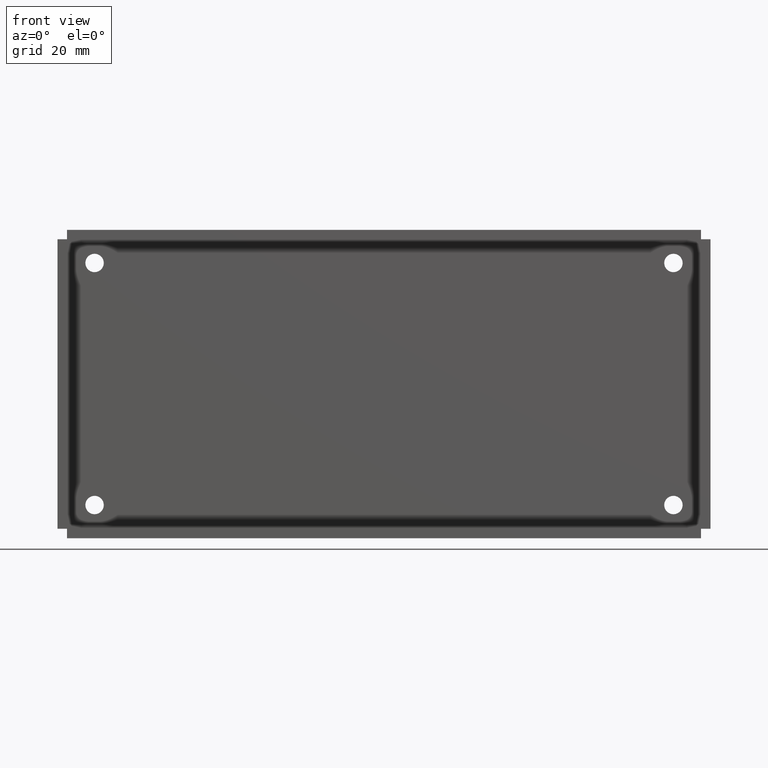
[diagram: clean part render]
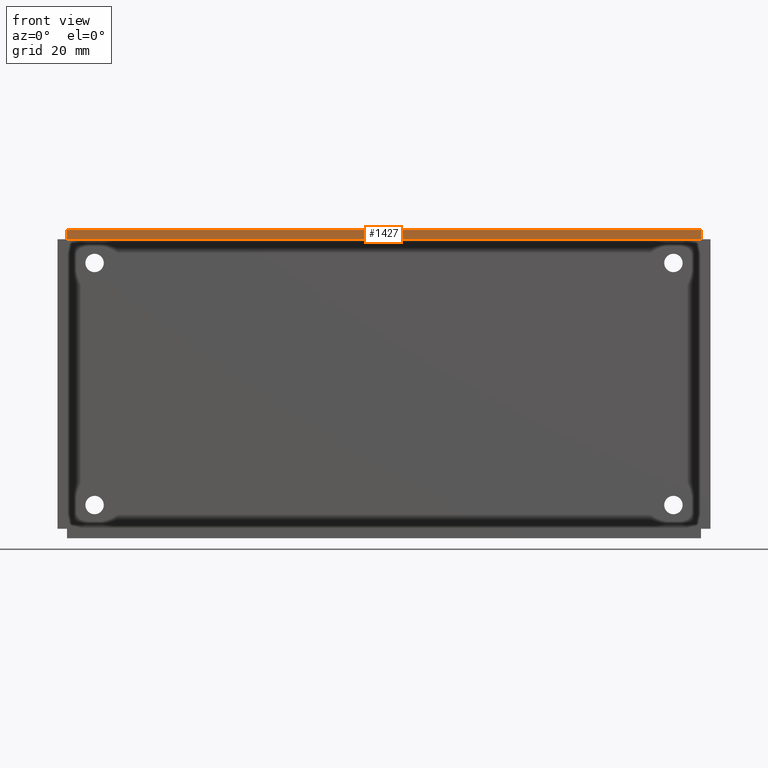
[diagram: same view with one face highlighted and labeled with its STEP entity id]
A machine part, front view. The second image highlights one B-rep face of the part: STEP entity #1427.
In plain terms, the highlighted face is a freeform B-spline surface patch.
Its self-contained STEP definition (entity closure, byte-faithful):
#1369=CARTESIAN_POINT('',(-60.250000000000000,-22.0,27.510000000000002));
#1370=VERTEX_POINT('',#1369);
#1385=CARTESIAN_POINT('',(60.250000000000000,-22.0,27.510000000000002));
#1386=VERTEX_POINT('',#1385);
#1392=CARTESIAN_POINT('',(60.250000000000000,-22.0,27.510000000000002));
#1393=CARTESIAN_POINT('',(-60.250000000000000,-22.0,27.510000000000002));
#1394=QUASI_UNIFORM_CURVE('',1,(#1392,#1393),.UNSPECIFIED.,.F.,.U.);
#1395=EDGE_CURVE('',#1386,#1370,#1394,.T.);
#1400=CARTESIAN_POINT('',(-66.268974766447613,-22.0,27.420589777085539));
#1401=CARTESIAN_POINT('',(-66.268974766447613,-22.0,29.389409726795201));
#1402=CARTESIAN_POINT('',(66.268977998509484,-22.0,27.420589777085539));
#1403=CARTESIAN_POINT('',(66.268977998509484,-22.0,29.389409726795201));
#1404=B_SPLINE_SURFACE_WITH_KNOTS('',1,1,((#1400,#1402),(#1401,#1403)),.UNSPECIFIED.,.F.,.F.,.U.,(2,2),(2,2),(0.0,1.968819949709669),(0.0,132.537952764957110),.UNSPECIFIED.);
#1405=CARTESIAN_POINT('',(-60.250000000000000,-22.0,29.300000000000001));
#1406=VERTEX_POINT('',#1405);
#1407=CARTESIAN_POINT('',(-60.250000000000000,-22.0,29.300000000000001));
#1408=CARTESIAN_POINT('',(-60.250000000000000,-22.0,27.510000000000002));
#1409=QUASI_UNIFORM_CURVE('',1,(#1407,#1408),.UNSPECIFIED.,.F.,.U.);
#1410=EDGE_CURVE('',#1406,#1370,#1409,.T.);
#1411=ORIENTED_EDGE('',*,*,#1410,.T.);
#1412=ORIENTED_EDGE('',*,*,#1395,.F.);
#1413=CARTESIAN_POINT('',(60.250000000000000,-22.0,29.300000000000001));
#1414=VERTEX_POINT('',#1413);
#1415=CARTESIAN_POINT('',(60.250000000000000,-22.0,29.300000000000001));
#1416=CARTESIAN_POINT('',(60.250000000000000,-22.0,27.510000000000002));
#1417=QUASI_UNIFORM_CURVE('',1,(#1415,#1416),.UNSPECIFIED.,.F.,.U.);
#1418=EDGE_CURVE('',#1414,#1386,#1417,.T.);
#1419=ORIENTED_EDGE('',*,*,#1418,.F.);
#1420=CARTESIAN_POINT('',(60.250000000000000,-22.0,29.300000000000001));
#1421=CARTESIAN_POINT('',(-60.250000000000000,-22.0,29.300000000000001));
#1422=QUASI_UNIFORM_CURVE('',1,(#1420,#1421),.UNSPECIFIED.,.F.,.U.);
#1423=EDGE_CURVE('',#1414,#1406,#1422,.T.);
#1424=ORIENTED_EDGE('',*,*,#1423,.T.);
#1425=EDGE_LOOP('',(#1411,#1412,#1419,#1424));
#1426=FACE_OUTER_BOUND('',#1425,.T.);
#1427=ADVANCED_FACE('',(#1426),#1404,.F.);